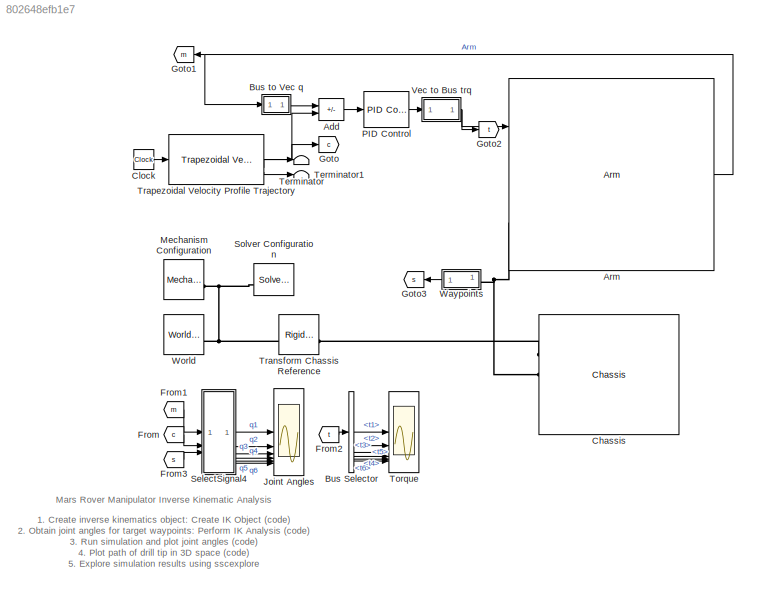
MODEL slx_802648efb1e7
KIND model
CONFIG AbsTol = 1e-3
CONFIG EnableMultiTasking = on
CONFIG FixedStep = 1e-4
CONFIG MaxStep = 0.1
CONFIG MinStep = auto
CONFIG PostLoadFcn = load mars_rover_arm_joint_traj
CONFIG RelTol = 1e-3
CONFIG SampleTimeConstraint = Unconstrained
CONFIG SolverName = ode23t
CONFIG StartTime = 0.0
CONFIG StopTime = 50
BLOCK [Sum] Add
  IconShape = rectangular
  Inputs = -+
BLOCK [Reference] Arm  REF=mars_rover_lib/Arm  (lib defined in slx_4b23714ba4d0)
  SourceBlock = mars_rover_lib/Arm
BLOCK [BusSelector] Bus Selector
  OutputSignals = t1,t2,t3,t4,t5,t6
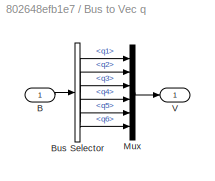
BLOCK [SubSystem] Bus to Vec q
BLOCK [Inport] Bus to Vec q/B
BLOCK [BusSelector] Bus to Vec q/Bus Selector
  OutputSignals = q.q1,q.q2,q.q3,q.q4,q.q5,q.q6
BLOCK [Mux] Bus to Vec q/Mux
  DisplayOption = bar
  Inputs = 6
BLOCK [Outport] Bus to Vec q/V
BLOCK [Reference] Chassis  REF=mars_rover_lib/Chassis  (lib defined in slx_4b23714ba4d0)
  SourceBlock = mars_rover_lib/Chassis
BLOCK [Clock] Clock
BLOCK [From] From
  GotoTag = c
BLOCK [From] From1
  GotoTag = m
BLOCK [From] From2
  GotoTag = t
BLOCK [From] From3
  GotoTag = s
BLOCK [Goto] Goto
  GotoTag = c
BLOCK [Goto] Goto1
  GotoTag = m
BLOCK [Goto] Goto2
  GotoTag = t
BLOCK [Goto] Goto3
  GotoTag = s
BLOCK [Scope] Joint Angles
  Floating = off
  NumInputPorts = 6
  ScopeSpecificationString = Simulink.scopes.TimeScopeBlockCfg('CurrentConfiguration', extmgr.ConfigurationSet(extmgr.Configuration('Core','General UI',true),extmgr.Configuration('Core','Source UI',true),extmgr.Configuration('Sources','WiredSimulink',true),extmgr.Configuration('Visuals','Time Domain',true,'SerializedDisplays',{struct('MinYLimReal','-14.91429','MaxYLimReal','110.52107','YLabelReal','Joint Angle (deg)','MinYLim...<+6775ch>
BLOCK [Reference] Mechanism Configuration  REF=sm_lib/Utilities/Mechanism
Configuration
  SourceBlock = sm_lib/Utilities/Mechanism\nConfiguration
  SourceType = Mechanism\nConfiguration
BLOCK [Reference] PID Control  REF=slpidlib/PID Controller
  SourceBlock = slpidlib/PID Controller
  SourceType = PID 1dof
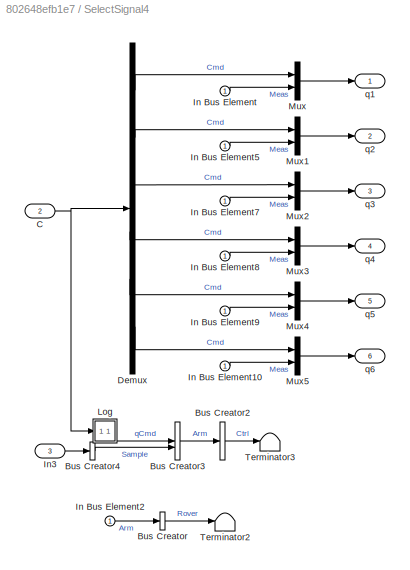
BLOCK [SubSystem] SelectSignal4
BLOCK [BusCreator] SelectSignal4/Bus Creator
  DisplayOption = bar
  InheritFromInputs = on
  Inputs = 1
  NameLocation = top
BLOCK [BusCreator] SelectSignal4/Bus Creator2
  DisplayOption = bar
  InheritFromInputs = on
  Inputs = 1
BLOCK [BusCreator] SelectSignal4/Bus Creator3
  DisplayOption = bar
  InheritFromInputs = on
  Inputs = 2
BLOCK [BusCreator] SelectSignal4/Bus Creator4
  DisplayOption = bar
  InheritFromInputs = on
  Inputs = 1
BLOCK [Inport] SelectSignal4/C
  Port = 2
BLOCK [Demux] SelectSignal4/Demux
  Outputs = 6
BLOCK [Inport] SelectSignal4/In Bus Element
BLOCK [Inport] SelectSignal4/In Bus Element10
BLOCK [Inport] SelectSignal4/In Bus Element2
BLOCK [Inport] SelectSignal4/In Bus Element5
BLOCK [Inport] SelectSignal4/In Bus Element7
BLOCK [Inport] SelectSignal4/In Bus Element8
BLOCK [Inport] SelectSignal4/In Bus Element9
BLOCK [Inport] SelectSignal4/In3
  Port = 3
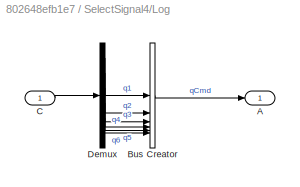
BLOCK [SubSystem] SelectSignal4/Log 
  NameLocation = top
BLOCK [Outport] SelectSignal4/Log /A
BLOCK [BusCreator] SelectSignal4/Log /Bus Creator
  DisplayOption = bar
  InheritFromInputs = on
  Inputs = 6
BLOCK [Inport] SelectSignal4/Log /C
BLOCK [Demux] SelectSignal4/Log /Demux
  NameLocation = top
  Outputs = 6
BLOCK [Mux] SelectSignal4/Mux
  DisplayOption = bar
  Inputs = 2
BLOCK [Mux] SelectSignal4/Mux1
  DisplayOption = bar
  Inputs = 2
BLOCK [Mux] SelectSignal4/Mux2
  DisplayOption = bar
  Inputs = 2
BLOCK [Mux] SelectSignal4/Mux3
  DisplayOption = bar
  Inputs = 2
BLOCK [Mux] SelectSignal4/Mux4
  DisplayOption = bar
  Inputs = 2
BLOCK [Mux] SelectSignal4/Mux5
  DisplayOption = bar
  Inputs = 2
BLOCK [Terminator] SelectSignal4/Terminator2
  NameLocation = top
BLOCK [Terminator] SelectSignal4/Terminator3
  NameLocation = top
BLOCK [Outport] SelectSignal4/q1
BLOCK [Outport] SelectSignal4/q2
  Port = 2
BLOCK [Outport] SelectSignal4/q3
  Port = 3
BLOCK [Outport] SelectSignal4/q4
  Port = 4
BLOCK [Outport] SelectSignal4/q5
  Port = 5
BLOCK [Outport] SelectSignal4/q6
  Port = 6
BLOCK [Reference] Solver Configuration  REF=nesl_utility/Solver
Configuration
  SourceBlock = nesl_utility/Solver\nConfiguration
  SourceType = Solver\nConfiguration
BLOCK [Terminator] Terminator
BLOCK [Terminator] Terminator1
BLOCK [Scope] Torque
  Floating = off
  NumInputPorts = 6
  ScopeSpecificationString = Simulink.scopes.TimeScopeBlockCfg('CurrentConfiguration', extmgr.ConfigurationSet(extmgr.Configuration('Core','General UI',true),extmgr.Configuration('Core','Source UI',true),extmgr.Configuration('Sources','WiredSimulink',true,'DataLoggingVariableName','ScopeData2'),extmgr.Configuration('Visuals','Time Domain',true,'SerializedDisplays',{struct('MinYLimReal','-72.39496','MaxYLimReal','72.83074','YL...<+6000ch>
BLOCK [Reference] Transform Chassis Reference  REF=sm_lib/Frames and
Transforms/Rigid
Transform
  SourceBlock = sm_lib/Frames and\nTransforms/Rigid\nTransform
  SourceType = Rigid\nTransform
BLOCK [Reference] Trapezoidal Velocity Profile Trajectory  REF=robotcorelib/Trapezoidal Velocity Profile Trajectory
  SourceBlock = robotcorelib/Trapezoidal Velocity Profile Trajectory
  SourceType = robotics.slcore.internal.block.TrapVelTrajSys
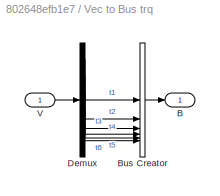
BLOCK [SubSystem] Vec to Bus trq
BLOCK [Outport] Vec to Bus trq/B
BLOCK [BusCreator] Vec to Bus trq/Bus Creator
  DisplayOption = bar
  InheritFromInputs = on
  Inputs = 6
BLOCK [Demux] Vec to Bus trq/Demux
  Outputs = 6
BLOCK [Inport] Vec to Bus trq/V
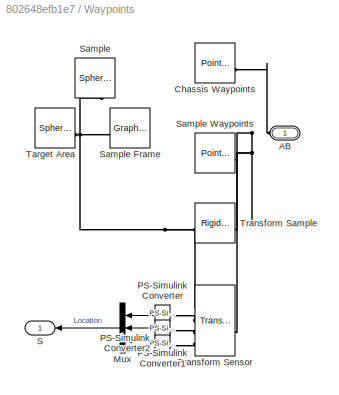
BLOCK [SubSystem] Waypoints
BLOCK [PMIOPort] Waypoints/AB
  Side = Left
BLOCK [Reference] Waypoints/Chassis Waypoints  REF=sm_lib/Curves and Surfaces/Point Cloud
  NameLocation = top
  SourceBlock = sm_lib/Curves and Surfaces/Point Cloud
  SourceType = Point Cloud
BLOCK [Mux] Waypoints/Mux
  DisplayOption = bar
  Inputs = 3
BLOCK [Reference] Waypoints/PS-Simulink Converter  REF=nesl_utility/PS-Simulink
Converter
  SourceBlock = nesl_utility/PS-Simulink\nConverter
  SourceType = PS-Simulink\nConverter
BLOCK [Reference] Waypoints/PS-Simulink Converter1  REF=nesl_utility/PS-Simulink
Converter
  SourceBlock = nesl_utility/PS-Simulink\nConverter
  SourceType = PS-Simulink\nConverter
BLOCK [Reference] Waypoints/PS-Simulink Converter2  REF=nesl_utility/PS-Simulink
Converter
  SourceBlock = nesl_utility/PS-Simulink\nConverter
  SourceType = PS-Simulink\nConverter
BLOCK [Outport] Waypoints/S
BLOCK [Reference] Waypoints/Sample  REF=sm_lib/Body Elements/Spherical Solid
  NameLocation = top
  SourceBlock = sm_lib/Body Elements/Spherical Solid
  SourceType = Spherical Solid
BLOCK [Reference] Waypoints/Sample Frame  REF=sm_lib/Body Elements/Graphic
  SourceBlock = sm_lib/Body Elements/Graphic
  SourceType = Graphic
BLOCK [Reference] Waypoints/Sample Waypoints  REF=sm_lib/Curves and Surfaces/Point Cloud
  NameLocation = top
  SourceBlock = sm_lib/Curves and Surfaces/Point Cloud
  SourceType = Point Cloud
BLOCK [Reference] Waypoints/Target Area  REF=sm_lib/Body Elements/Spherical Solid
  SourceBlock = sm_lib/Body Elements/Spherical Solid
  SourceType = Spherical Solid
BLOCK [Reference] Waypoints/Transform Sample  REF=sm_lib/Frames and
Transforms/Rigid
Transform
  SourceBlock = sm_lib/Frames and\nTransforms/Rigid\nTransform
  SourceType = Rigid\nTransform
BLOCK [Reference] Waypoints/Transform Sensor  REF=sm_lib/Frames and
Transforms/Transform
Sensor
  SourceBlock = sm_lib/Frames and\nTransforms/Transform\nSensor
  SourceType = Transform\nSensor
BLOCK [Reference] World  REF=sm_lib/Frames and
Transforms/World Frame
  SourceBlock = sm_lib/Frames and\nTransforms/World Frame
  SourceType = World Frame
ANNOTATION (root): 1. Create inverse kinematics object: Create IK Object ( code ) 2. Obtain joint angles for target waypoints: Perform IK Analysis ( code ) 3. Run simulation and plot joint angles ( code ) 4. Plot path of drill tip in 3D space ( code ) 5. Explore simulation results using sscexplore
ANNOTATION (root): Mars Rover Manipulator Inverse Kinematic Analysis
LINE Add:1 -> PID Control:1
NET Arm:1 -> Bus to Vec q:1, Goto1:1
LINE Bus Selector:1 -> Torque:1
LINE Bus Selector:2 -> Torque:2
LINE Bus Selector:3 -> Torque:3
LINE Bus Selector:4 -> Torque:4
LINE Bus Selector:5 -> Torque:5
LINE Bus Selector:6 -> Torque:6
LINE Bus to Vec q/B:1 -> Bus to Vec q/Bus Selector:1
LINE Bus to Vec q/Bus Selector:1 -> Bus to Vec q/Mux:1
LINE Bus to Vec q/Bus Selector:2 -> Bus to Vec q/Mux:2
LINE Bus to Vec q/Bus Selector:3 -> Bus to Vec q/Mux:3
LINE Bus to Vec q/Bus Selector:4 -> Bus to Vec q/Mux:4
LINE Bus to Vec q/Bus Selector:5 -> Bus to Vec q/Mux:5
LINE Bus to Vec q/Bus Selector:6 -> Bus to Vec q/Mux:6
LINE Bus to Vec q/Mux:1 -> Bus to Vec q/V:1
LINE Bus to Vec q:1 -> Add:1
LINE Clock:1 -> Trapezoidal Velocity Profile Trajectory:1
LINE From1:1 -> SelectSignal4:1
LINE From2:1 -> Bus Selector:1
LINE From3:1 -> SelectSignal4:3
LINE From:1 -> SelectSignal4:2
LINE PID Control:1 -> Vec to Bus trq:1
LINE SelectSignal4/Bus Creator2:1 -> SelectSignal4/Terminator3:1
LINE SelectSignal4/Bus Creator3:1 -> SelectSignal4/Bus Creator2:1
LINE SelectSignal4/Bus Creator4:1 -> SelectSignal4/Bus Creator3:2
LINE SelectSignal4/Bus Creator:1 -> SelectSignal4/Terminator2:1
NET SelectSignal4/C:1 -> SelectSignal4/Demux:1, SelectSignal4/Log :1
LINE SelectSignal4/Demux:1 -> SelectSignal4/Mux:1
LINE SelectSignal4/Demux:2 -> SelectSignal4/Mux1:1
LINE SelectSignal4/Demux:3 -> SelectSignal4/Mux2:1
LINE SelectSignal4/Demux:4 -> SelectSignal4/Mux3:1
LINE SelectSignal4/Demux:5 -> SelectSignal4/Mux4:1
LINE SelectSignal4/Demux:6 -> SelectSignal4/Mux5:1
LINE SelectSignal4/In Bus Element10:1 -> SelectSignal4/Mux5:2
LINE SelectSignal4/In Bus Element2:1 -> SelectSignal4/Bus Creator:1
LINE SelectSignal4/In Bus Element5:1 -> SelectSignal4/Mux1:2
LINE SelectSignal4/In Bus Element7:1 -> SelectSignal4/Mux2:2
LINE SelectSignal4/In Bus Element8:1 -> SelectSignal4/Mux3:2
LINE SelectSignal4/In Bus Element9:1 -> SelectSignal4/Mux4:2
LINE SelectSignal4/In Bus Element:1 -> SelectSignal4/Mux:2
LINE SelectSignal4/In3:1 -> SelectSignal4/Bus Creator4:1
LINE SelectSignal4/Log /Bus Creator:1 -> SelectSignal4/Log /A:1
LINE SelectSignal4/Log /C:1 -> SelectSignal4/Log /Demux:1
LINE SelectSignal4/Log /Demux:1 -> SelectSignal4/Log /Bus Creator:1
LINE SelectSignal4/Log /Demux:2 -> SelectSignal4/Log /Bus Creator:2
LINE SelectSignal4/Log /Demux:3 -> SelectSignal4/Log /Bus Creator:3
LINE SelectSignal4/Log /Demux:4 -> SelectSignal4/Log /Bus Creator:4
LINE SelectSignal4/Log /Demux:5 -> SelectSignal4/Log /Bus Creator:5
LINE SelectSignal4/Log /Demux:6 -> SelectSignal4/Log /Bus Creator:6
LINE SelectSignal4/Log :1 -> SelectSignal4/Bus Creator3:1
LINE SelectSignal4/Mux1:1 -> SelectSignal4/q2:1
LINE SelectSignal4/Mux2:1 -> SelectSignal4/q3:1
LINE SelectSignal4/Mux3:1 -> SelectSignal4/q4:1
LINE SelectSignal4/Mux4:1 -> SelectSignal4/q5:1
LINE SelectSignal4/Mux5:1 -> SelectSignal4/q6:1
LINE SelectSignal4/Mux:1 -> SelectSignal4/q1:1
LINE SelectSignal4:1 -> Joint Angles:1
LINE SelectSignal4:2 -> Joint Angles:2
LINE SelectSignal4:3 -> Joint Angles:3
LINE SelectSignal4:4 -> Joint Angles:4
LINE SelectSignal4:5 -> Joint Angles:5
LINE SelectSignal4:6 -> Joint Angles:6
NET Trapezoidal Velocity Profile Trajectory:1 -> Add:2, Goto:1
LINE Trapezoidal Velocity Profile Trajectory:2 -> Terminator:1
LINE Trapezoidal Velocity Profile Trajectory:3 -> Terminator1:1
LINE Vec to Bus trq/Bus Creator:1 -> Vec to Bus trq/B:1
LINE Vec to Bus trq/Demux:1 -> Vec to Bus trq/Bus Creator:1
LINE Vec to Bus trq/Demux:2 -> Vec to Bus trq/Bus Creator:2
LINE Vec to Bus trq/Demux:3 -> Vec to Bus trq/Bus Creator:3
LINE Vec to Bus trq/Demux:4 -> Vec to Bus trq/Bus Creator:4
LINE Vec to Bus trq/Demux:5 -> Vec to Bus trq/Bus Creator:5
LINE Vec to Bus trq/Demux:6 -> Vec to Bus trq/Bus Creator:6
LINE Vec to Bus trq/V:1 -> Vec to Bus trq/Demux:1
NET Vec to Bus trq:1 -> Arm:1, Goto2:1
LINE Waypoints/Mux:1 -> Waypoints/S:1
LINE Waypoints/PS-Simulink Converter1:1 -> Waypoints/Mux:2
LINE Waypoints/PS-Simulink Converter2:1 -> Waypoints/Mux:3
LINE Waypoints/PS-Simulink Converter:1 -> Waypoints/Mux:1
LINE Waypoints:1 -> Goto3:1
PNET net1: Arm:LConn2 -- Chassis:LConn2 -- Waypoints:LConn1
PLINE Chassis:LConn1 -- Transform Chassis Reference:RConn1
PNET net2: Mechanism Configuration:RConn1 -- Solver Configuration:RConn1 -- Transform Chassis Reference:LConn1 -- World:RConn1
PNET net3: Waypoints/AB:RConn1 -- Waypoints/Chassis Waypoints:LConn1 -- Waypoints/Sample Waypoints:LConn1 -- Waypoints/Transform Sample:LConn1 -- Waypoints/Transform Sensor:LConn1
PLINE Waypoints/PS-Simulink Converter1:LConn1 -- Waypoints/Transform Sensor:RConn3
PLINE Waypoints/PS-Simulink Converter2:LConn1 -- Waypoints/Transform Sensor:RConn4
PLINE Waypoints/PS-Simulink Converter:LConn1 -- Waypoints/Transform Sensor:RConn2
PNET net4: Waypoints/Sample Frame:RConn1 -- Waypoints/Sample:RConn1 -- Waypoints/Target Area:RConn1 -- Waypoints/Transform Sample:RConn1 -- Waypoints/Transform Sensor:RConn1
note: NET lines group one-source signal fan-out (src -> all destinations, sorted); 1:1 wires keep LINE; PNET lines group multi-terminal physical nets as a canonical sorted terminal list (undirected conserving connections); 2-terminal nets keep the pairwise PLINE form
